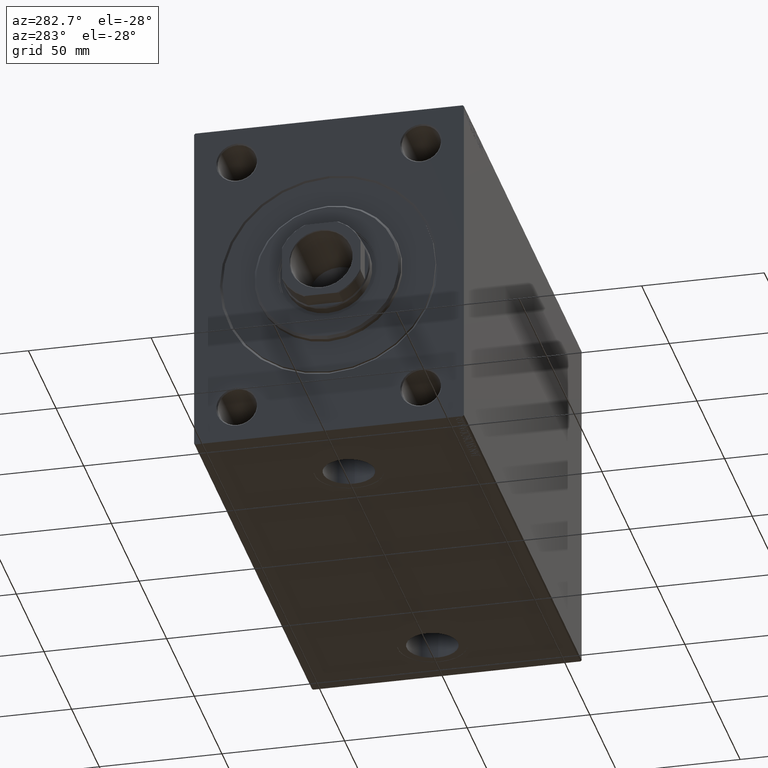
[diagram: clean part render]
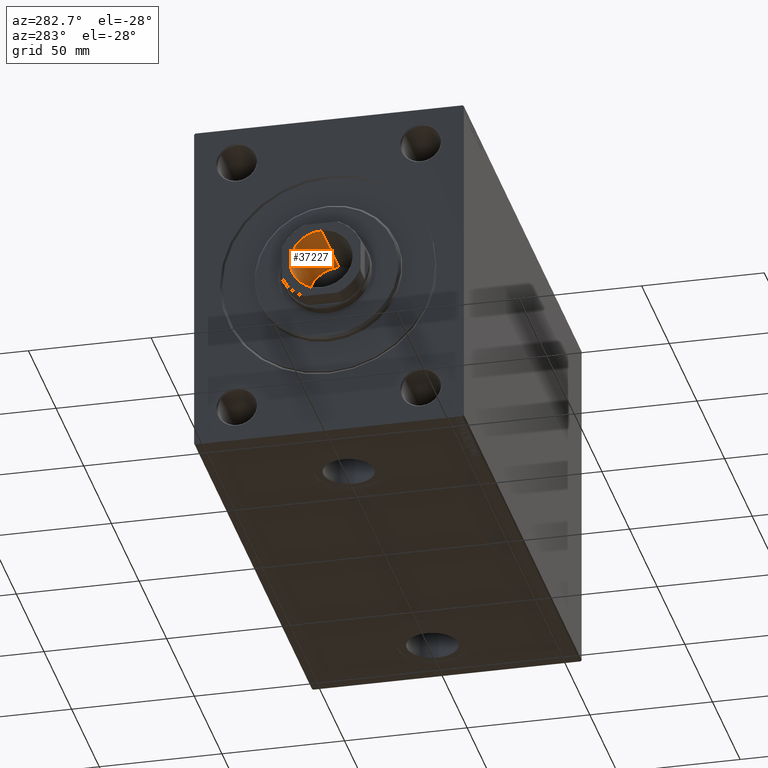
[diagram: same view with one face highlighted and labeled with its STEP entity id]
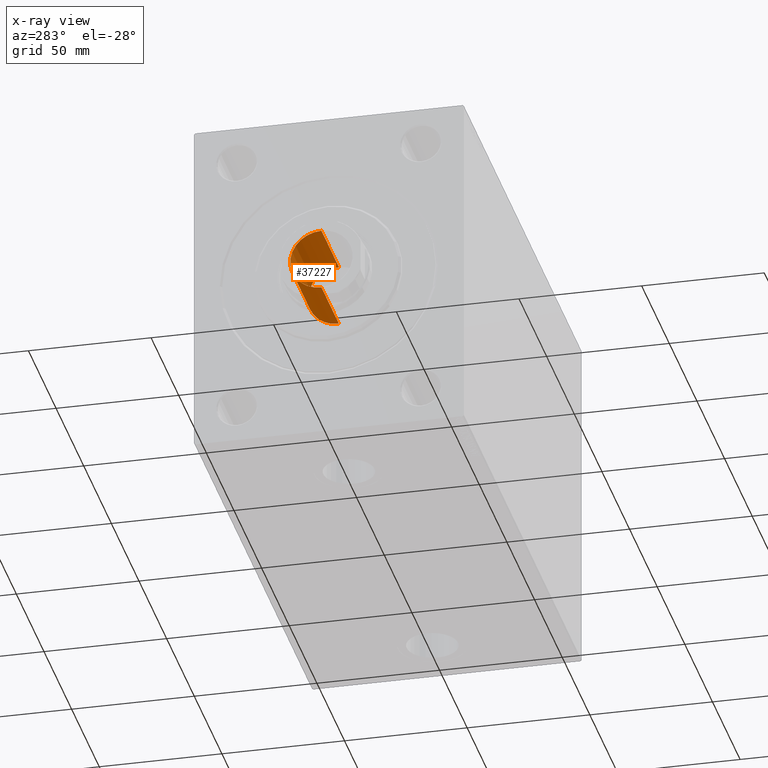
[diagram: x-ray of the same camera — body ghosted, the highlighted face saturated]
A machine part, auxiliary view. The second image highlights one B-rep face of the part: STEP entity #37227.
The next image is the same camera in x-ray: the body ghosted, the highlighted face saturated — about 0% of this face is hidden behind the body in this view.
In plain terms, the highlighted cylindrical surface (edge-blend (fillet) strip) has radius 12.75 mm, axis along (-1, 0, 0).
Its self-contained STEP definition (entity closure, byte-faithful):
#1902 = CARTESIAN_POINT ( 'NONE',  ( 12.74999999999999467, 0.000000000000000000, 174.0000000000000284 ) ) ;
#5500 = ORIENTED_EDGE ( 'NONE', *, *, #33247, .F. ) ;
#5673 = CARTESIAN_POINT ( 'NONE',  ( 0.000000000000000000, 0.000000000000000000, 174.0000000000000284 ) ) ;
#7827 = CARTESIAN_POINT ( 'NONE',  ( -12.74999999999999645, 1.561424668912874717E-15, 206.0000000000000284 ) ) ;
#10720 = CARTESIAN_POINT ( 'NONE',  ( 12.74999999999999645, 0.000000000000000000, 206.0000000000000284 ) ) ;
#14312 = DIRECTION ( 'NONE',  ( -0.000000000000000000, -0.000000000000000000, 1.000000000000000000 ) ) ;
#14766 = LINE ( 'NONE', #7827, #33248 ) ;
#15834 = ORIENTED_EDGE ( 'NONE', *, *, #30946, .F. ) ;
#19122 = AXIS2_PLACEMENT_3D ( 'NONE', #5673, #41254, #44039 ) ;
#19717 = CIRCLE ( 'NONE', #22673, 12.74999999999999645 ) ;
#19938 = EDGE_CURVE ( 'NONE', #32473, #40408, #19717, .T. ) ;
#20913 = DIRECTION ( 'NONE',  ( 0.000000000000000000, 0.000000000000000000, 1.000000000000000000 ) ) ;
#21371 = CIRCLE ( 'NONE', #19122, 12.74999999999999467 ) ;
#22673 = AXIS2_PLACEMENT_3D ( 'NONE', #41910, #20913, #34995 ) ;
#23173 = VERTEX_POINT ( 'NONE', #24809 ) ;
#24809 = CARTESIAN_POINT ( 'NONE',  ( -12.74999999999999467, 1.561424668912874519E-15, 174.0000000000000284 ) ) ;
#26372 = FACE_OUTER_BOUND ( 'NONE', #38566, .T. ) ;
#27680 = CARTESIAN_POINT ( 'NONE',  ( 12.74999999999999645, 0.000000000000000000, 205.7000000000000171 ) ) ;
#27914 = EDGE_CURVE ( 'NONE', #36521, #32473, #31987, .T. ) ;
#30511 = DIRECTION ( 'NONE',  ( 1.000000000000000000, 0.000000000000000000, 0.000000000000000000 ) ) ;
#30946 = EDGE_CURVE ( 'NONE', #36521, #23173, #21371, .T. ) ;
#31762 = DIRECTION ( 'NONE',  ( -0.000000000000000000, -0.000000000000000000, 1.000000000000000000 ) ) ;
#31987 = LINE ( 'NONE', #10720, #45626 ) ;
#32473 = VERTEX_POINT ( 'NONE', #27680 ) ;
#33247 = EDGE_CURVE ( 'NONE', #23173, #40408, #14766, .T. ) ;
#33248 = VECTOR ( 'NONE', #14312, 1000.000000000000000 ) ;
#34052 = AXIS2_PLACEMENT_3D ( 'NONE', #36985, #34199, #30511 ) ;
#34199 = DIRECTION ( 'NONE',  ( -0.000000000000000000, -0.000000000000000000, 1.000000000000000000 ) ) ;
#34995 = DIRECTION ( 'NONE',  ( 1.000000000000000000, 0.000000000000000000, 0.000000000000000000 ) ) ;
#35931 = ORIENTED_EDGE ( 'NONE', *, *, #19938, .T. ) ;
#36227 = ORIENTED_EDGE ( 'NONE', *, *, #27914, .T. ) ;
#36521 = VERTEX_POINT ( 'NONE', #1902 ) ;
#36985 = CARTESIAN_POINT ( 'NONE',  ( 0.000000000000000000, 0.000000000000000000, 206.0000000000000284 ) ) ;
#37209 = CYLINDRICAL_SURFACE ( 'NONE', #34052, 12.74999999999999645 ) ;
#37227 = ADVANCED_FACE ( 'NONE', ( #26372 ), #37209, .F. ) ;
#38566 = EDGE_LOOP ( 'NONE', ( #5500, #15834, #36227, #35931 ) ) ;
#40408 = VERTEX_POINT ( 'NONE', #45524 ) ;
#41254 = DIRECTION ( 'NONE',  ( -0.000000000000000000, -0.000000000000000000, 1.000000000000000000 ) ) ;
#41910 = CARTESIAN_POINT ( 'NONE',  ( 0.000000000000000000, 0.000000000000000000, 205.7000000000000171 ) ) ;
#44039 = DIRECTION ( 'NONE',  ( 1.000000000000000000, 0.000000000000000000, 0.000000000000000000 ) ) ;
#45524 = CARTESIAN_POINT ( 'NONE',  ( -12.74999999999999645, 1.561424668912874717E-15, 205.7000000000000171 ) ) ;
#45626 = VECTOR ( 'NONE', #31762, 1000.000000000000000 ) ;